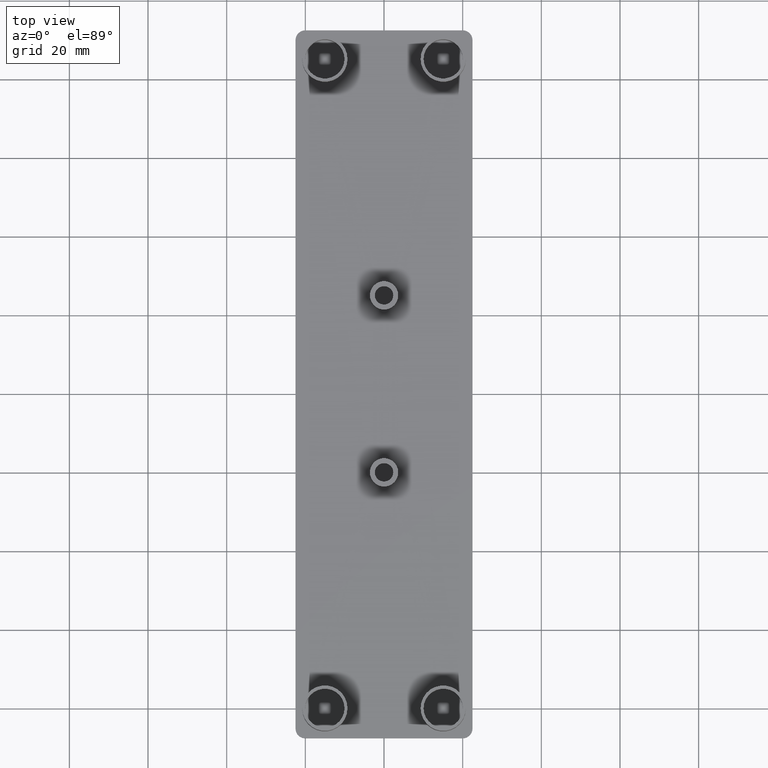
[diagram: clean part render]
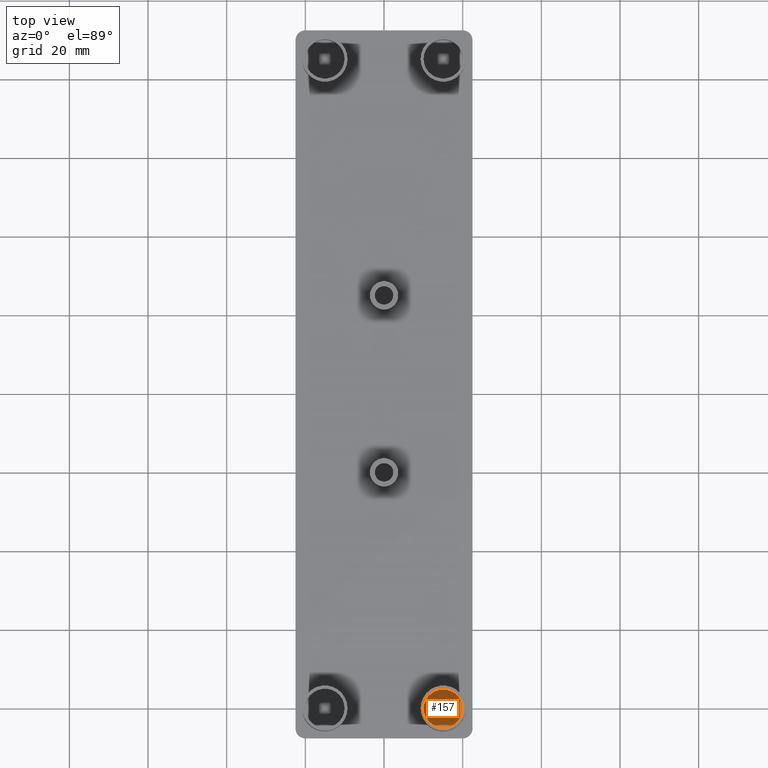
[diagram: same view with one face highlighted and labeled with its STEP entity id]
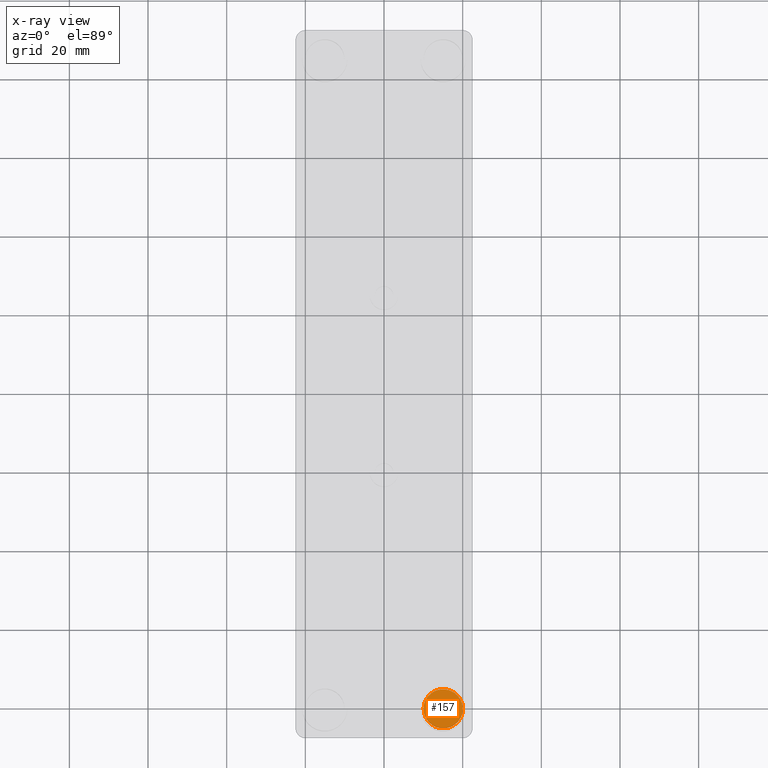
[diagram: x-ray of the same camera — body ghosted, the highlighted face saturated]
A machine part, top view. The second image highlights one B-rep face of the part: STEP entity #157.
The next image is the same camera in x-ray: the body ghosted, the highlighted face saturated — about 0% of this face is hidden behind the body in this view.
In plain terms, the highlighted planar face has unit normal (0, 0, 1).
Its self-contained STEP definition (entity closure, byte-faithful):
#132=CARTESIAN_POINT('',(-27.000009683665212,-85.500041855611016,0.0));
#133=DIRECTION('',(0.0,0.0,1.0));
#134=DIRECTION('',(1.0,0.0,0.0));
#135=AXIS2_PLACEMENT_3D('',#132,#133,#134);
#136=PLANE('',#135);
#137=CARTESIAN_POINT('',(10.049980999963726,-60.050044999759848,0.0));
#138=VERTEX_POINT('',#137);
#139=CARTESIAN_POINT('',(20.049980999923719,-60.050044999759848,0.0));
#140=VERTEX_POINT('',#139);
#141=CARTESIAN_POINT('',(15.049980999943728,-60.050044999759848,0.0));
#142=DIRECTION('',(0.0,0.0,-1.0));
#143=DIRECTION('',(1.0,0.0,0.0));
#144=AXIS2_PLACEMENT_3D('',#141,#142,#143);
#145=CIRCLE('',#144,4.999999999980001);
#146=EDGE_CURVE('',#138,#140,#145,.T.);
#147=ORIENTED_EDGE('',*,*,#146,.F.);
#148=CARTESIAN_POINT('',(15.049980999943728,-60.050044999759848,0.0));
#149=DIRECTION('',(0.0,0.0,-1.0));
#150=DIRECTION('',(1.0,0.0,0.0));
#151=AXIS2_PLACEMENT_3D('',#148,#149,#150);
#152=CIRCLE('',#151,4.999999999980001);
#153=EDGE_CURVE('',#140,#138,#152,.T.);
#154=ORIENTED_EDGE('',*,*,#153,.F.);
#155=EDGE_LOOP('',(#147,#154));
#156=FACE_OUTER_BOUND('',#155,.T.);
#157=ADVANCED_FACE('',(#156),#136,.T.);